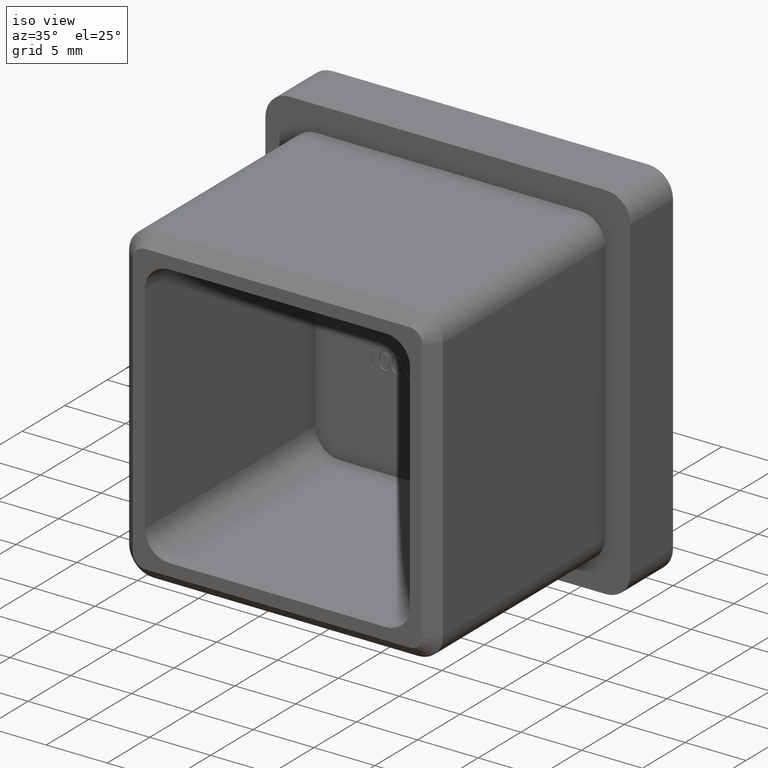
[diagram: clean part render]
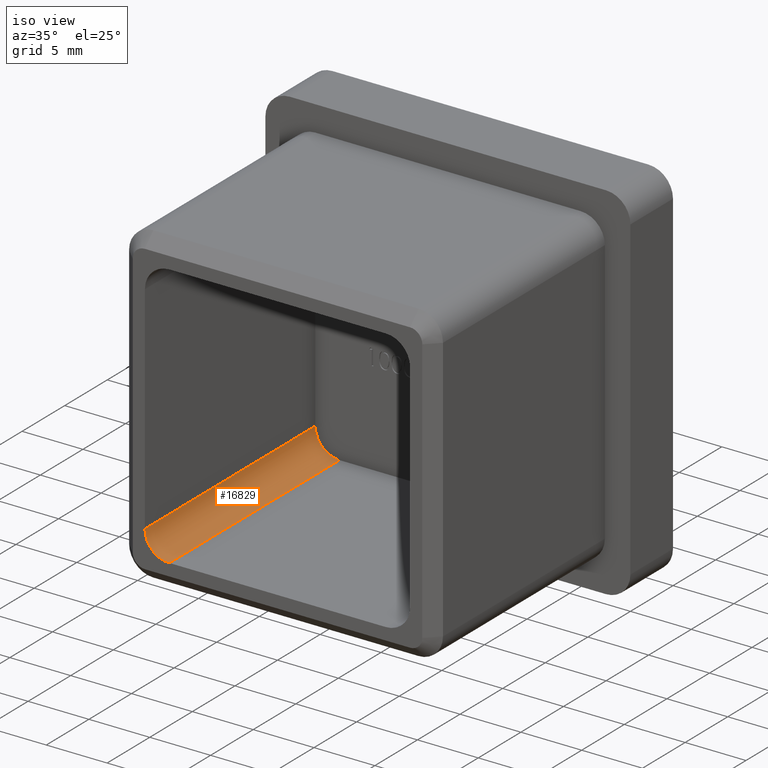
[diagram: same view with one face highlighted and labeled with its STEP entity id]
A machine part, iso view. The second image highlights one B-rep face of the part: STEP entity #16829.
In plain terms, the highlighted cylindrical surface (edge-blend (fillet) strip) has radius 2 mm, axis along (0, -1, 0).
Its self-contained STEP definition (entity closure, byte-faithful):
#555 = ORIENTED_EDGE ( 'NONE', *, *, #15877, .F. ) ;
#1160 = CIRCLE ( 'NONE', #10469, 2.000000000000000000 ) ;
#1465 = EDGE_CURVE ( 'NONE', #8429, #3818, #17124, .T. ) ;
#1939 = DIRECTION ( 'NONE',  ( 0.0000000000000000000, 1.000000000000000000, -0.0000000000000000000 ) ) ;
#2335 = CYLINDRICAL_SURFACE ( 'NONE', #15430, 2.000000000000000000 ) ;
#2664 = LINE ( 'NONE', #15582, #3105 ) ;
#3105 = VECTOR ( 'NONE', #1939, 1000.000000000000000 ) ;
#3329 = DIRECTION ( 'NONE',  ( -0.0000000000000000000, -1.000000000000000000, 0.0000000000000000000 ) ) ;
#3434 = CARTESIAN_POINT ( 'NONE',  ( -8.900000000000005700, -20.00000000000000000, -10.90000000000000600 ) ) ;
#3818 = VERTEX_POINT ( 'NONE', #7260 ) ;
#4523 = CARTESIAN_POINT ( 'NONE',  ( -8.900000000000005700, -20.00000000000000000, -8.900000000000007500 ) ) ;
#4558 = VERTEX_POINT ( 'NONE', #4641 ) ;
#4641 = CARTESIAN_POINT ( 'NONE',  ( -8.900000000000005700, -20.00000000000000000, -10.90000000000000600 ) ) ;
#4785 = CARTESIAN_POINT ( 'NONE',  ( -10.90000000000000600, -20.00000000000000000, -8.900000000000007500 ) ) ;
#5091 = VECTOR ( 'NONE', #3329, 1000.000000000000000 ) ;
#6022 = DIRECTION ( 'NONE',  ( 0.0000000000000000000, 0.0000000000000000000, -1.000000000000000000 ) ) ;
#6591 = CARTESIAN_POINT ( 'NONE',  ( -10.90000000000000600, 0.0000000000000000000, -8.900000000000007500 ) ) ;
#7260 = CARTESIAN_POINT ( 'NONE',  ( -8.900000000000005700, 0.0000000000000000000, -10.90000000000000600 ) ) ;
#7737 = EDGE_CURVE ( 'NONE', #10811, #8429, #2664, .T. ) ;
#7970 = DIRECTION ( 'NONE',  ( -0.0000000000000000000, 1.000000000000000000, -0.0000000000000000000 ) ) ;
#8090 = EDGE_LOOP ( 'NONE', ( #12764, #555, #16115, #12573 ) ) ;
#8192 = DIRECTION ( 'NONE',  ( -0.0000000000000000000, -1.000000000000000000, -0.0000000000000000000 ) ) ;
#8429 = VERTEX_POINT ( 'NONE', #6591 ) ;
#8759 = LINE ( 'NONE', #3434, #5091 ) ;
#9105 = AXIS2_PLACEMENT_3D ( 'NONE', #12187, #8192, #10825 ) ;
#9979 = DIRECTION ( 'NONE',  ( 0.0000000000000000000, -1.000000000000000000, 0.0000000000000000000 ) ) ;
#10469 = AXIS2_PLACEMENT_3D ( 'NONE', #14776, #7970, #16059 ) ;
#10811 = VERTEX_POINT ( 'NONE', #4785 ) ;
#10825 = DIRECTION ( 'NONE',  ( 0.0000000000000000000, 0.0000000000000000000, 1.000000000000000000 ) ) ;
#12187 = CARTESIAN_POINT ( 'NONE',  ( -8.900000000000005700, 0.0000000000000000000, -8.900000000000007500 ) ) ;
#12573 = ORIENTED_EDGE ( 'NONE', *, *, #7737, .F. ) ;
#12764 = ORIENTED_EDGE ( 'NONE', *, *, #12951, .F. ) ;
#12951 = EDGE_CURVE ( 'NONE', #4558, #10811, #1160, .T. ) ;
#14776 = CARTESIAN_POINT ( 'NONE',  ( -8.900000000000005700, -20.00000000000000000, -8.900000000000007500 ) ) ;
#15430 = AXIS2_PLACEMENT_3D ( 'NONE', #4523, #9979, #6022 ) ;
#15582 = CARTESIAN_POINT ( 'NONE',  ( -10.90000000000000600, 0.0000000000000000000, -8.900000000000007500 ) ) ;
#15877 = EDGE_CURVE ( 'NONE', #3818, #4558, #8759, .T. ) ;
#16059 = DIRECTION ( 'NONE',  ( 0.0000000000000000000, 0.0000000000000000000, -1.000000000000000000 ) ) ;
#16115 = ORIENTED_EDGE ( 'NONE', *, *, #1465, .F. ) ;
#16829 = ADVANCED_FACE ( 'NONE', ( #17184 ), #2335, .F. ) ;
#17124 = CIRCLE ( 'NONE', #9105, 2.000000000000000000 ) ;
#17184 = FACE_OUTER_BOUND ( 'NONE', #8090, .T. ) ;